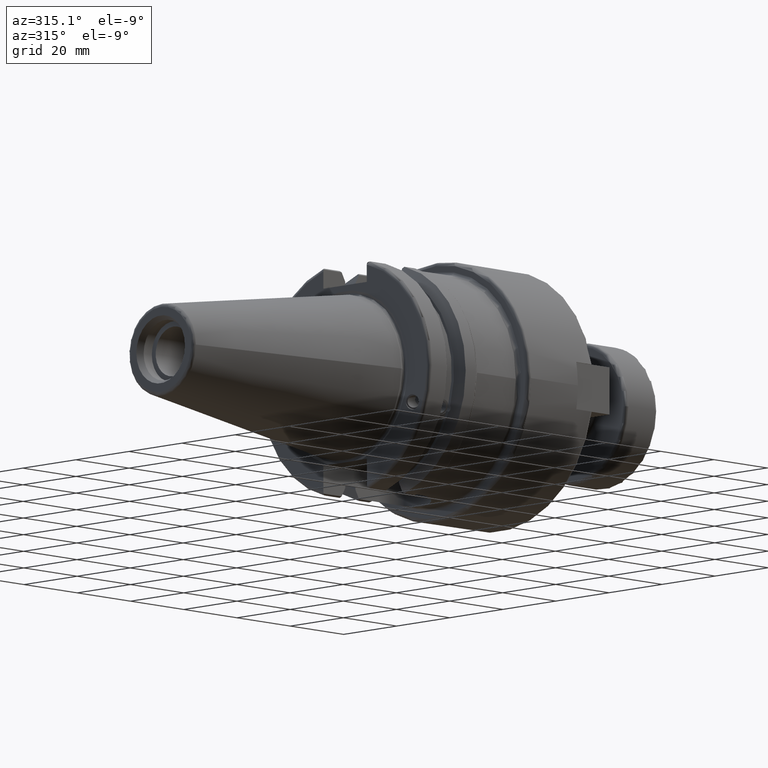
[diagram: clean part render]
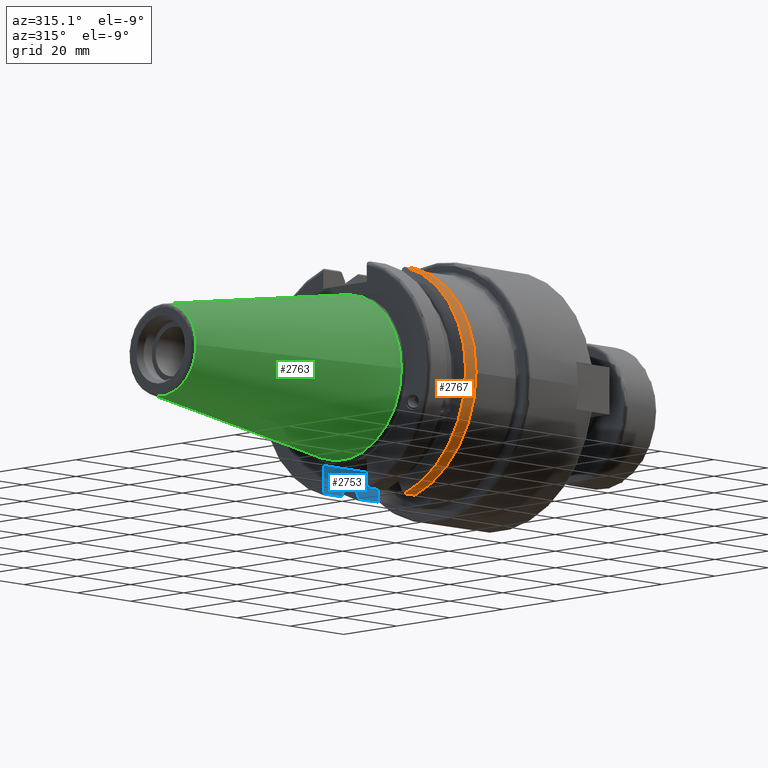
[diagram: same view with three faces highlighted in distinct colors, each labeled with its STEP entity id]
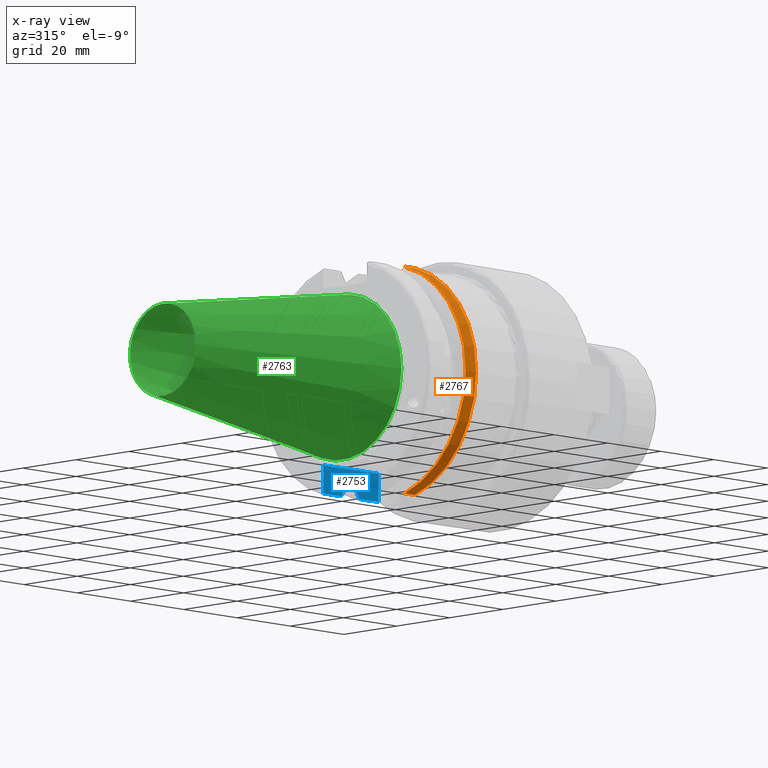
[diagram: x-ray of the same camera — body ghosted, the three highlighted faces saturated]
A machine part, auxiliary view with three faces highlighted in distinct colors.
The next image is the same camera in x-ray (body ghosted, the three faces saturated) — at least one of them is partly hidden behind the body in this view.
Their STEP definitions:

[orange] entity #2767 — the highlighted cylindrical surface (partial cylindrical patch) has radius 31.75 mm, axis along (1, 0, 0).
#328=FACE_OUTER_BOUND('',#505,.T.);
#505=EDGE_LOOP('',(#2316,#2317,#2318,#2319));
#648=CIRCLE('',#3066,31.75);
#667=CIRCLE('',#3113,31.75);
#823=LINE('',#4975,#996);
#846=LINE('',#5137,#1019);
#996=VECTOR('',#3718,10.);
#1019=VECTOR('',#3799,10.);
#1248=VERTEX_POINT('',#4754);
#1249=VERTEX_POINT('',#4758);
#1287=VERTEX_POINT('',#4954);
#1288=VERTEX_POINT('',#4963);
#1566=EDGE_CURVE('',#1249,#1248,#648,.T.);
#1624=EDGE_CURVE('',#1287,#1288,#667,.T.);
#1627=EDGE_CURVE('',#1249,#1287,#823,.T.);
#1678=EDGE_CURVE('',#1288,#1248,#846,.T.);
#2316=ORIENTED_EDGE('',*,*,#1624,.F.);
#2317=ORIENTED_EDGE('',*,*,#1627,.F.);
#2318=ORIENTED_EDGE('',*,*,#1566,.T.);
#2319=ORIENTED_EDGE('',*,*,#1678,.F.);
#2661=CYLINDRICAL_SURFACE('',#3144,31.75);
#2767=ADVANCED_FACE('',(#328),#2661,.T.);
#3066=AXIS2_PLACEMENT_3D('',#4759,#3601,#3602);
#3113=AXIS2_PLACEMENT_3D('',#4964,#3713,#3714);
#3144=AXIS2_PLACEMENT_3D('',#5138,#3800,#3801);
#3601=DIRECTION('center_axis',(1.,0.,0.));
#3602=DIRECTION('ref_axis',(0.,0.,-1.));
#3713=DIRECTION('center_axis',(1.,0.,0.));
#3714=DIRECTION('ref_axis',(0.,-1.,1.60812264967664E-16));
#3718=DIRECTION('',(1.,0.,0.));
#3799=DIRECTION('',(-1.,0.,0.));
#3800=DIRECTION('center_axis',(1.,0.,0.));
#3801=DIRECTION('ref_axis',(0.,-1.,1.22464679914735E-16));
#4754=CARTESIAN_POINT('',(14.6602667690756,-8.67204822802686,-30.5427254764662));
#4758=CARTESIAN_POINT('',(14.6602667690756,-8.67204822802685,30.5427254764662));
#4759=CARTESIAN_POINT('Origin',(14.6602667690756,0.,0.));
#4954=CARTESIAN_POINT('',(18.55,-8.67204822802685,30.5427254764662));
#4963=CARTESIAN_POINT('',(18.55,-8.67204822802686,-30.5427254764662));
#4964=CARTESIAN_POINT('Origin',(18.55,0.,0.));
#4975=CARTESIAN_POINT('',(16.8551333845378,-8.67204822802685,30.5427254764662));
#5137=CARTESIAN_POINT('',(16.8551333845378,-8.67204822802686,-30.5427254764662));
#5138=CARTESIAN_POINT('Origin',(16.8551333845378,0.,0.));

[blue] entity #2753 — the highlighted planar face has unit normal (-0, 1, 0).
#78=(
BOUNDED_CURVE()
B_SPLINE_CURVE(2,(#4910,#4911,#4912),.UNSPECIFIED.,.F.,.F.)
B_SPLINE_CURVE_WITH_KNOTS((3,3),(0.,0.276549142796478),.UNSPECIFIED.)
CURVE()
GEOMETRIC_REPRESENTATION_ITEM()
RATIONAL_B_SPLINE_CURVE((1.,1.00095203904184,1.00031614445101))
REPRESENTATION_ITEM('')
);
#82=(
BOUNDED_CURVE()
B_SPLINE_CURVE(2,(#5024,#5025,#5026),.UNSPECIFIED.,.F.,.F.)
B_SPLINE_CURVE_WITH_KNOTS((3,3),(0.0550586467393412,0.331607789535852),
 .UNSPECIFIED.)
CURVE()
GEOMETRIC_REPRESENTATION_ITEM()
RATIONAL_B_SPLINE_CURVE((1.00031614444923,1.00095203903649,1.))
REPRESENTATION_ITEM('')
);
#171=PLANE('',#3118);
#314=FACE_OUTER_BOUND('',#488,.T.);
#488=EDGE_LOOP('',(#2222,#2223,#2224,#2225,#2226,#2227,#2228,#2229,#2230,
#2231,#2232,#2233,#2234,#2235));
#740=LINE('',#4168,#913);
#743=LINE('',#4179,#916);
#746=LINE('',#4243,#919);
#815=LINE('',#4926,#988);
#816=LINE('',#4930,#989);
#817=LINE('',#4934,#990);
#830=LINE('',#5012,#1003);
#831=LINE('',#5014,#1004);
#832=LINE('',#5022,#1005);
#833=LINE('',#5027,#1006);
#913=VECTOR('',#3291,10.);
#916=VECTOR('',#3300,10.);
#919=VECTOR('',#3319,10.);
#988=VECTOR('',#3678,10.);
#989=VECTOR('',#3683,10.);
#990=VECTOR('',#3688,10.);
#1003=VECTOR('',#3733,10.);
#1004=VECTOR('',#3734,10.);
#1005=VECTOR('',#3735,10.);
#1006=VECTOR('',#3736,10.);
#1087=B_SPLINE_CURVE_WITH_KNOTS('',3,(#4209,#4210,#4211,#4212,#4213,#4214,
#4215,#4216),.UNSPECIFIED.,.F.,.F.,(4,2,2,4),(0.150701518379276,0.169005567117137,
0.187646666187138,0.189786770823023),.UNSPECIFIED.);
#1121=B_SPLINE_CURVE_WITH_KNOTS('',3,(#5016,#5017,#5018,#5019,#5020,#5021),
 .UNSPECIFIED.,.F.,.F.,(4,2,4),(0.0977210450333167,0.111963554372601,0.150804064902975),
 .UNSPECIFIED.);
#1128=VERTEX_POINT('',#4145);
#1130=VERTEX_POINT('',#4166);
#1135=VERTEX_POINT('',#4178);
#1140=VERTEX_POINT('',#4208);
#1146=VERTEX_POINT('',#4242);
#1275=VERTEX_POINT('',#4907);
#1276=VERTEX_POINT('',#4909);
#1279=VERTEX_POINT('',#4924);
#1280=VERTEX_POINT('',#4928);
#1281=VERTEX_POINT('',#4932);
#1297=VERTEX_POINT('',#5011);
#1298=VERTEX_POINT('',#5013);
#1299=VERTEX_POINT('',#5015);
#1300=VERTEX_POINT('',#5023);
#1402=EDGE_CURVE('',#1130,#1128,#740,.T.);
#1407=EDGE_CURVE('',#1128,#1135,#743,.T.);
#1414=EDGE_CURVE('',#1135,#1140,#1087,.T.);
#1421=EDGE_CURVE('',#1140,#1146,#746,.T.);
#1604=EDGE_CURVE('',#1275,#1276,#78,.T.);
#1610=EDGE_CURVE('',#1279,#1275,#815,.T.);
#1612=EDGE_CURVE('',#1280,#1279,#816,.T.);
#1614=EDGE_CURVE('',#1281,#1280,#817,.T.);
#1638=EDGE_CURVE('',#1297,#1130,#830,.T.);
#1639=EDGE_CURVE('',#1298,#1297,#831,.T.);
#1640=EDGE_CURVE('',#1299,#1298,#1121,.T.);
#1641=EDGE_CURVE('',#1276,#1299,#832,.T.);
#1642=EDGE_CURVE('',#1300,#1281,#82,.T.);
#1643=EDGE_CURVE('',#1146,#1300,#833,.T.);
#2222=ORIENTED_EDGE('',*,*,#1421,.F.);
#2223=ORIENTED_EDGE('',*,*,#1414,.F.);
#2224=ORIENTED_EDGE('',*,*,#1407,.F.);
#2225=ORIENTED_EDGE('',*,*,#1402,.F.);
#2226=ORIENTED_EDGE('',*,*,#1638,.F.);
#2227=ORIENTED_EDGE('',*,*,#1639,.F.);
#2228=ORIENTED_EDGE('',*,*,#1640,.F.);
#2229=ORIENTED_EDGE('',*,*,#1641,.F.);
#2230=ORIENTED_EDGE('',*,*,#1604,.F.);
#2231=ORIENTED_EDGE('',*,*,#1610,.F.);
#2232=ORIENTED_EDGE('',*,*,#1612,.F.);
#2233=ORIENTED_EDGE('',*,*,#1614,.F.);
#2234=ORIENTED_EDGE('',*,*,#1642,.F.);
#2235=ORIENTED_EDGE('',*,*,#1643,.F.);
#2753=ADVANCED_FACE('',(#314),#171,.F.);
#3118=AXIS2_PLACEMENT_3D('',#5010,#3731,#3732);
#3291=DIRECTION('',(0.,0.,-1.));
#3300=DIRECTION('',(-1.,0.,0.));
#3319=DIRECTION('',(0.,0.,1.));
#3678=DIRECTION('',(0.,0.,-1.));
#3683=DIRECTION('',(-1.,0.,0.));
#3688=DIRECTION('',(0.,0.,1.));
#3731=DIRECTION('center_axis',(-1.16558847729675E-16,1.,0.));
#3732=DIRECTION('ref_axis',(1.,1.16558847729675E-16,0.));
#3733=DIRECTION('',(1.,5.33504576946255E-17,0.));
#3734=DIRECTION('',(0.,0.,1.));
#3735=DIRECTION('',(-1.,-1.16558847729675E-16,0.));
#3736=DIRECTION('',(-1.,-1.16558847729675E-16,0.));
#4145=CARTESIAN_POINT('',(21.81,8.19,-30.157692219399));
#4166=CARTESIAN_POINT('',(21.81,8.19,-22.6));
#4168=CARTESIAN_POINT('',(21.81,8.19,-22.6));
#4178=CARTESIAN_POINT('',(19.4160254037845,8.19,-30.157692219399));
#4179=CARTESIAN_POINT('',(27.025,8.19000000000001,-30.157692219399));
#4208=CARTESIAN_POINT('',(19.05,8.19,-30.3228088520371));
#4209=CARTESIAN_POINT('Ctrl Pts',(19.4160254037844,8.19,-30.157692219399));
#4210=CARTESIAN_POINT('Ctrl Pts',(19.3550119079916,8.19,-30.157692219399));
#4211=CARTESIAN_POINT('Ctrl Pts',(19.2832765027031,8.19,-30.1723429132824));
#4212=CARTESIAN_POINT('Ctrl Pts',(19.1698516525921,8.19,-30.2203100606627));
#4213=CARTESIAN_POINT('Ctrl Pts',(19.1083724332291,8.19,-30.2625019411507));
#4214=CARTESIAN_POINT('Ctrl Pts',(19.0599199681703,8.19,-30.3120073509719));
#4215=CARTESIAN_POINT('Ctrl Pts',(19.0549371592178,8.19,-30.3173134219991));
#4216=CARTESIAN_POINT('Ctrl Pts',(19.05,8.19,-30.3228088520371));
#4242=CARTESIAN_POINT('',(19.05,8.19,-30.1755016258903));
#4243=CARTESIAN_POINT('',(19.05,8.19,-11.3));
#4907=CARTESIAN_POINT('',(9.2191,8.19,-27.7771386827498));
#4909=CARTESIAN_POINT('',(7.88668530351257,8.19,-30.1755016258903));
#4910=CARTESIAN_POINT('Ctrl Pts',(9.2191,8.19,-27.7771386827498));
#4911=CARTESIAN_POINT('Ctrl Pts',(8.58046356152232,8.19,-28.9303689539734));
#4912=CARTESIAN_POINT('Ctrl Pts',(7.88668530351257,8.19,-30.1755016258903));
#4924=CARTESIAN_POINT('',(9.2191,8.19,-26.932255754021));
#4926=CARTESIAN_POINT('',(9.2191,8.18999999999999,-11.3));
#4928=CARTESIAN_POINT('',(13.0491,8.19,-26.932255754021));
#4930=CARTESIAN_POINT('',(11.1341,8.19,-26.932255754021));
#4932=CARTESIAN_POINT('',(13.0491,8.19,-27.7771386827498));
#4934=CARTESIAN_POINT('',(13.0491,8.19,-11.3));
#5010=CARTESIAN_POINT('Origin',(0.999999999999999,8.19,-22.6));
#5011=CARTESIAN_POINT('',(1.,8.19,-22.6));
#5012=CARTESIAN_POINT('',(1.,8.19,-22.6));
#5013=CARTESIAN_POINT('',(1.,8.18999999999999,-29.6392712461019));
#5014=CARTESIAN_POINT('',(1.,8.19,-11.3));
#5015=CARTESIAN_POINT('',(1.14412772509028,8.19,-30.1755016258903));
#5016=CARTESIAN_POINT('Ctrl Pts',(1.14412772509028,8.19,-30.1755016258903));
#5017=CARTESIAN_POINT('Ctrl Pts',(1.11818362718666,8.19,-30.131014531546));
#5018=CARTESIAN_POINT('Ctrl Pts',(1.09603565282437,8.19,-30.0852355256475));
#5019=CARTESIAN_POINT('Ctrl Pts',(1.02951443291695,8.19,-29.9212724384851));
#5020=CARTESIAN_POINT('Ctrl Pts',(1.,8.19,-29.7687396145364));
#5021=CARTESIAN_POINT('Ctrl Pts',(1.,8.19,-29.6392712461019));
#5022=CARTESIAN_POINT('',(4.30396661546218,8.19,-30.1755016258903));
#5023=CARTESIAN_POINT('',(14.3815146964874,8.19,-30.1755016258903));
#5024=CARTESIAN_POINT('Ctrl Pts',(14.3815146964874,8.19,-30.1755016258903));
#5025=CARTESIAN_POINT('Ctrl Pts',(13.6877364384736,8.19,-28.930368953966));
#5026=CARTESIAN_POINT('Ctrl Pts',(13.0491,8.19,-27.7771386827498));
#5027=CARTESIAN_POINT('',(16.8551333845378,8.19,-30.1755016258903));

[green] entity #2763 — the highlighted conical surface has half-angle 8.297 deg.
#133=CONICAL_SURFACE('',#3139,17.2484375,0.144812498238939);
#324=FACE_OUTER_BOUND('',#501,.T.);
#501=EDGE_LOOP('',(#2283,#2284,#2285,#2286,#2287));
#675=CIRCLE('',#3133,12.3966635780937);
#676=CIRCLE('',#3134,12.3966635780937);
#680=CIRCLE('',#3140,22.225);
#842=LINE('',#5119,#1015);
#1015=VECTOR('',#3789,17.2484375);
#1313=VERTEX_POINT('',#5106);
#1314=VERTEX_POINT('',#5107);
#1317=VERTEX_POINT('',#5117);
#1665=EDGE_CURVE('',#1313,#1314,#675,.T.);
#1666=EDGE_CURVE('',#1314,#1313,#676,.T.);
#1670=EDGE_CURVE('',#1317,#1317,#680,.T.);
#1671=EDGE_CURVE('',#1317,#1314,#842,.T.);
#2283=ORIENTED_EDGE('',*,*,#1670,.F.);
#2284=ORIENTED_EDGE('',*,*,#1671,.T.);
#2285=ORIENTED_EDGE('',*,*,#1665,.F.);
#2286=ORIENTED_EDGE('',*,*,#1666,.F.);
#2287=ORIENTED_EDGE('',*,*,#1671,.F.);
#2763=ADVANCED_FACE('',(#324),#133,.T.);
#3133=AXIS2_PLACEMENT_3D('',#5108,#3773,#3774);
#3134=AXIS2_PLACEMENT_3D('',#5109,#3775,#3776);
#3139=AXIS2_PLACEMENT_3D('',#5116,#3785,#3786);
#3140=AXIS2_PLACEMENT_3D('',#5118,#3787,#3788);
#3773=DIRECTION('center_axis',(-1.,0.,0.));
#3774=DIRECTION('ref_axis',(0.,-1.,3.06161699786838E-17));
#3775=DIRECTION('center_axis',(-1.,0.,0.));
#3776=DIRECTION('ref_axis',(0.,-1.,3.06161699786838E-17));
#3785=DIRECTION('center_axis',(1.,0.,0.));
#3786=DIRECTION('ref_axis',(0.,1.,0.));
#3787=DIRECTION('center_axis',(1.,0.,0.));
#3788=DIRECTION('ref_axis',(0.,0.,-1.));
#3789=DIRECTION('',(-0.989532981063282,0.144306893071729,1.76724974695192E-17));
#5106=CARTESIAN_POINT('',(-67.3943068930717,-1.5181534371019E-15,12.3966635780937));
#5107=CARTESIAN_POINT('',(-67.3943068930718,-12.3966635780937,-1.5181534371019E-15));
#5108=CARTESIAN_POINT('Origin',(-67.3943068930717,0.,-1.89769179637738E-15));
#5109=CARTESIAN_POINT('Origin',(-67.3943068930717,0.,-1.89769179637738E-15));
#5116=CARTESIAN_POINT('Origin',(-34.125,0.,0.));
#5117=CARTESIAN_POINT('',(0.,-22.225,-2.72177751110499E-15));
#5118=CARTESIAN_POINT('Origin',(0.,0.,0.));
#5119=CARTESIAN_POINT('',(-34.125,-17.2484375,-2.11232437746682E-15));